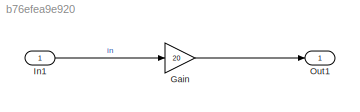
MODEL slx_b76efea9e920
KIND model
CONFIG AbsTol = auto
CONFIG EnableMultiTasking = off
CONFIG FixedStep = auto
CONFIG MaxStep = auto
CONFIG MinStep = auto
CONFIG PreLoadFcn = in = MyPackage.Signal;\nin.CoderInfo.StorageClass = 'Custom';\nin.CoderInfo.CustomStorageClass = 'my_de';\nin.CoderInfo.Identifier = 'li';\nin.CoderInfo.CustomAttributes.StructName = 'li';
CONFIG RelTol = 1e-3
CONFIG SampleTimeConstraint = Unconstrained
CONFIG SolverName = FixedStepDiscrete
CONFIG StartTime = 0.0
CONFIG StopTime = 10.0
BLOCK [Gain] Gain
  Gain = 20
BLOCK [Inport] In1
BLOCK [Outport] Out1
LINE Gain:1 -> Out1:1
LINE In1:1 -> Gain:1
